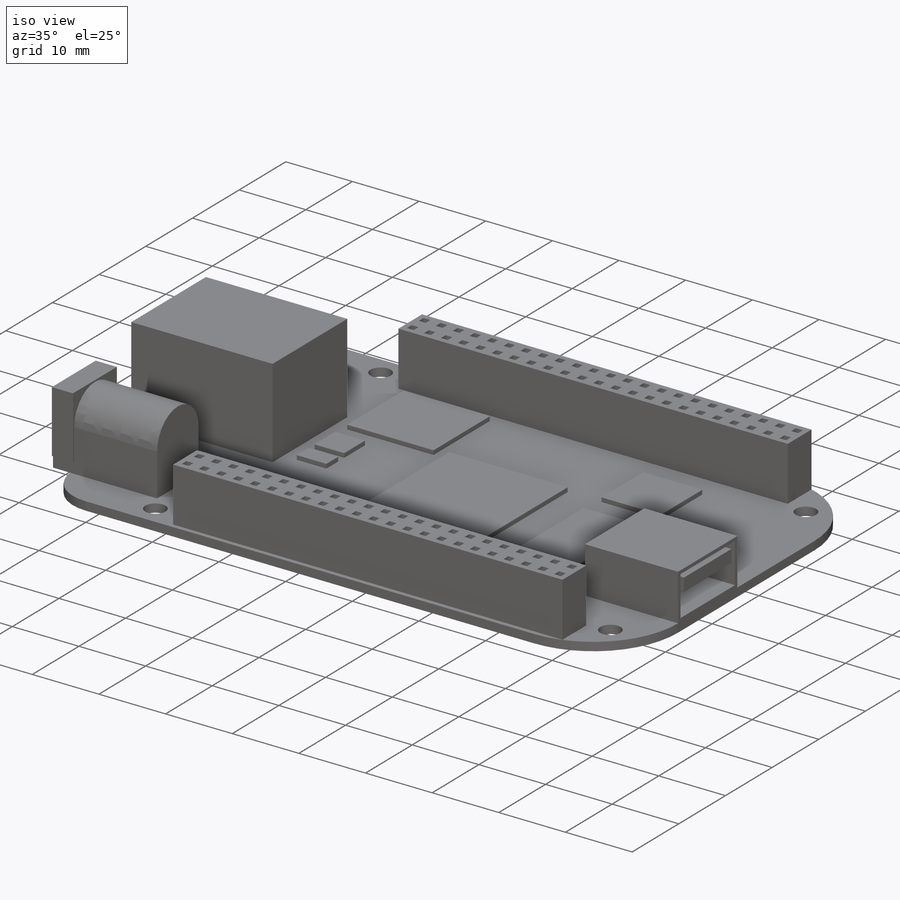
[diagram: iso view]
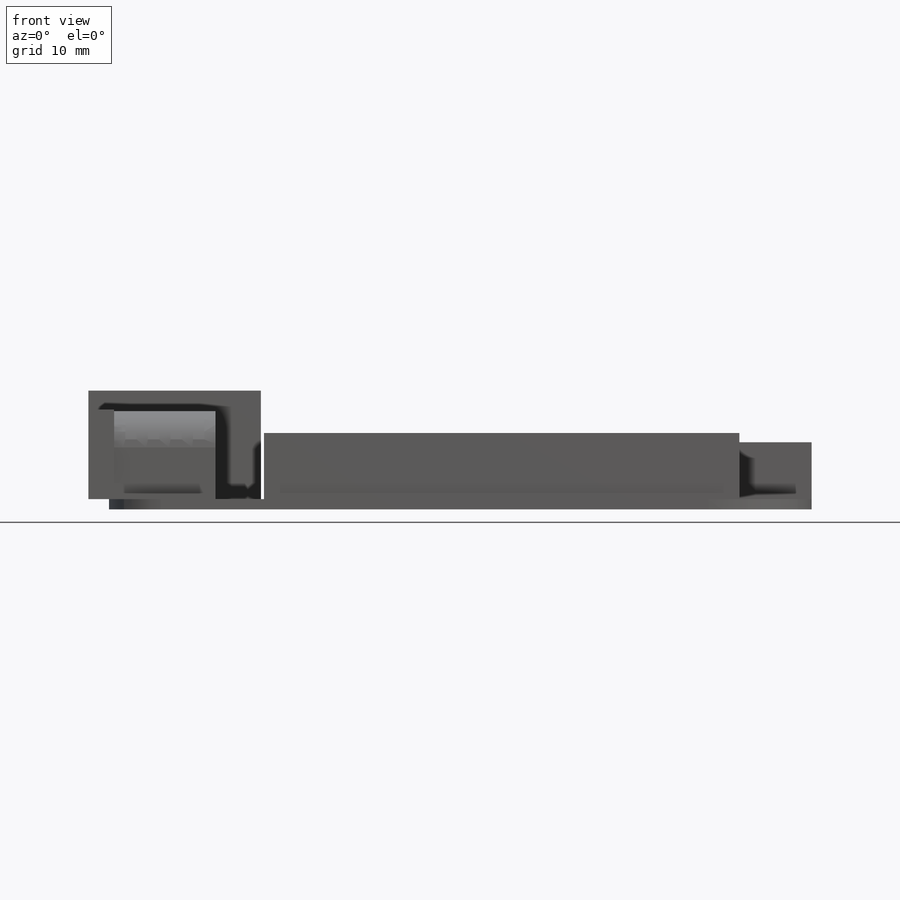
[diagram: front view]
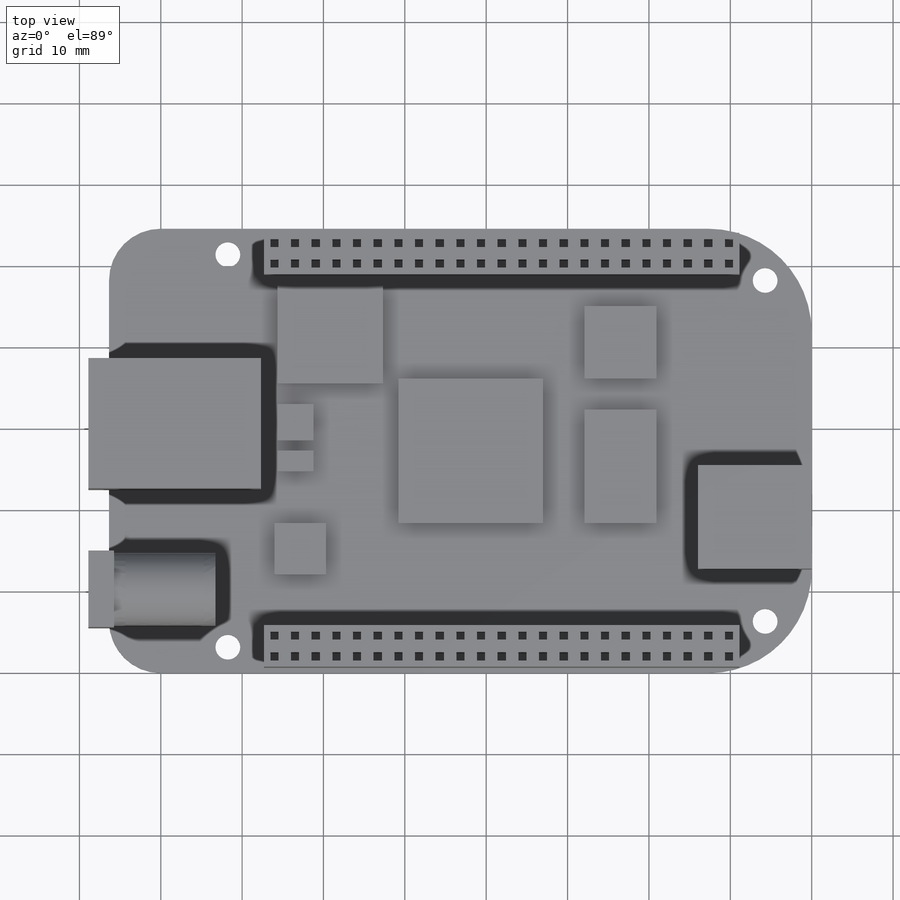
[diagram: top view]
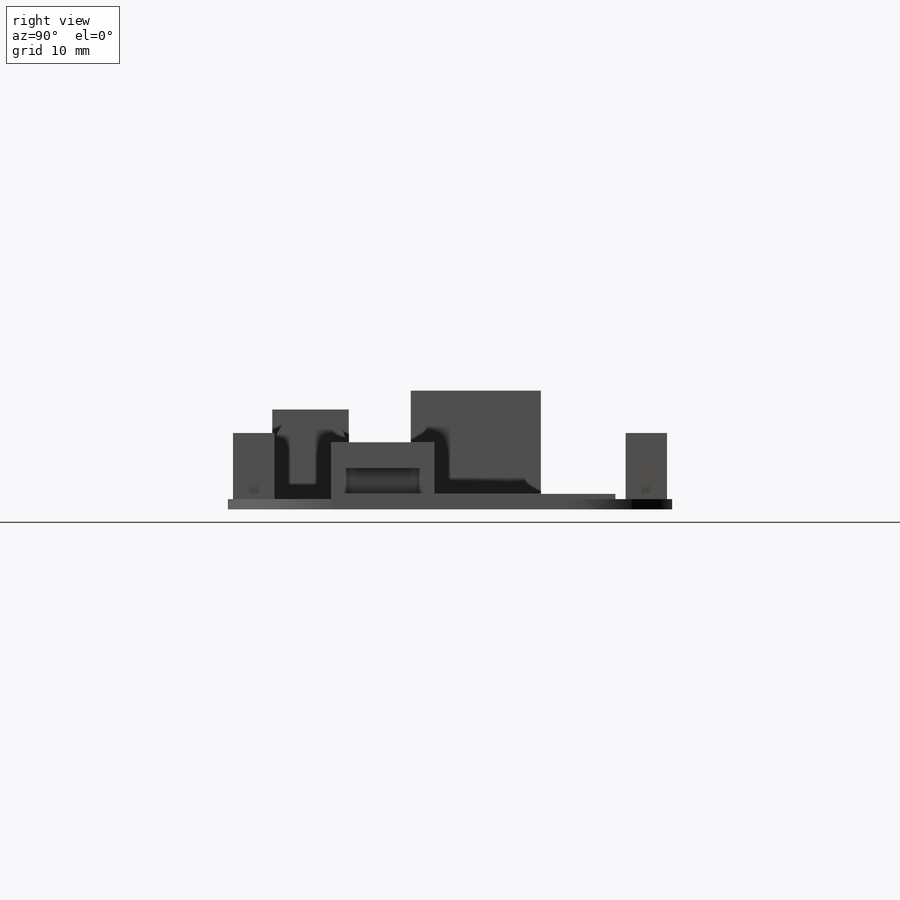
[diagram: right view]
SOLIDWORKS PART (.sldprt)
format: sldprt  version: not decoded by parser v0  size: 998,912 bytes
history: native  units: mm
features: sketch x12, extrude x8, cut_extrude x4, material x1, fillet x1 (+13 scaffold rows collapsed)
feature tree (39):
  scaffold x13  (default folders/planes/origin — collapsed)
  material  "ABS"
  sketch  "Sketch1"  dims[D3=12.7mm D4=6.35mm D1=86.36mm D2=54.61mm]
  extrude  "Boss-Extrude1"  Depth=1.27mm
  sketch  "Sketch2"  dims[c1.D7=3.048mm c1.D1=48.26mm c1.D2=41.91mm c1.D3=6.35mm c1.D4=5.715mm c1.D5=80.645mm c2.D4=14.605mm c2.D6=~14.62107mm c3.D6=90.0deg c4.D6=3.175mm]
  cut_extrude  "Cut-Extrude1"  [1 undecoded]
  sketch  "Sketch3"  dims[c1.D1=~1.125909mm c1.D2=~1.125909mm c2.D1=1.016mm c2.D2=2.54mm c2.D3=5.08mm c2.D4=58.42mm c2.D5=1.27mm c2.D7=~1.436841mm c3.D7=90.0deg c4.D7=41.91mm c5.D7=45.0deg c6.D7=20.32mm c6.D8=0.635mm c6.D9=5.08mm c6.D6=23.0]
  extrude  "Boss-Extrude2"  Depth=8.128mm
  sketch  "Sketch4"  dims[D1=2.54mm D2=21.209mm D3=16.002mm D4=16.129mm]
  extrude  "Boss-Extrude3"  Depth=13.335mm
  sketch  "Sketch5"  dims[D1=12.7mm D2=6.604mm D3=2.54mm D4=1.524mm D5=1.651mm D6=4.064mm D7=6.35mm]
  cut_extrude  "Cut-Extrude2"  Depth=17.78mm
  sketch  "Sketch6"  dims[D1=8.89mm D2=13.97mm D3=3.81mm D4=3.81mm D5=19.05mm D6=17.78mm D7=12.7mm D8=33.02mm D9=12.954mm D10=12.065mm D11=1.905mm D12=4.445mm D13=2.54mm D14=1.27mm D15=2.54mm D16=1.27mm D17=6.35mm D18=6.35mm D19=1.27mm]
  extrude  "Boss-Extrude4"  Depth=0.635mm
  sketch  "Sketch7"  dims[D1=12.7mm D2=13.97mm D3=25.4mm]
  extrude  "Boss-Extrude5"  Depth=6.985mm
  sketch  "Sketch8"  dims[c1.D1=0.508mm c1.D2=~1.10228mm c2.D1=0.508mm c2.D2=0.508mm c2.D3=0.508mm c2.D4=0.508mm c2.D5=1.905mm c2.D6=10.16mm c2.D7=3.175mm]
  cut_extrude  "Cut-Extrude3"  Depth=12.7mm
  sketch  "Sketch9"  dims[D1=8.89mm]
  extrude  "Boss-Extrude6"  Depth=6.35mm
  sketch  "Sketch10"  dims[D1=1.27mm D2=6.985mm]
  extrude  "Boss-Extrude7"  [1 undecoded]
  sketch  "Sketch11"  dims[D1=0.254mm]
  extrude  "Boss-Extrude8"  Depth=3.175mm
  cut_extrude  "Cut-Extrude4"  [1 undecoded]
  sketch  "Sketch10<3>"  dims[D1=12.7mm]
  fillet  "Fillet1"  Radius=0.635mm
decode coverage: 22 of 25 modeling features carry decoded parameters
note: ~ marks probable driven/reference dimensions
note: 3 parameter values undecoded
summary: no parameter record found for 3 features
note: suppression state not decoded; provenance and decode notes live in map.json
